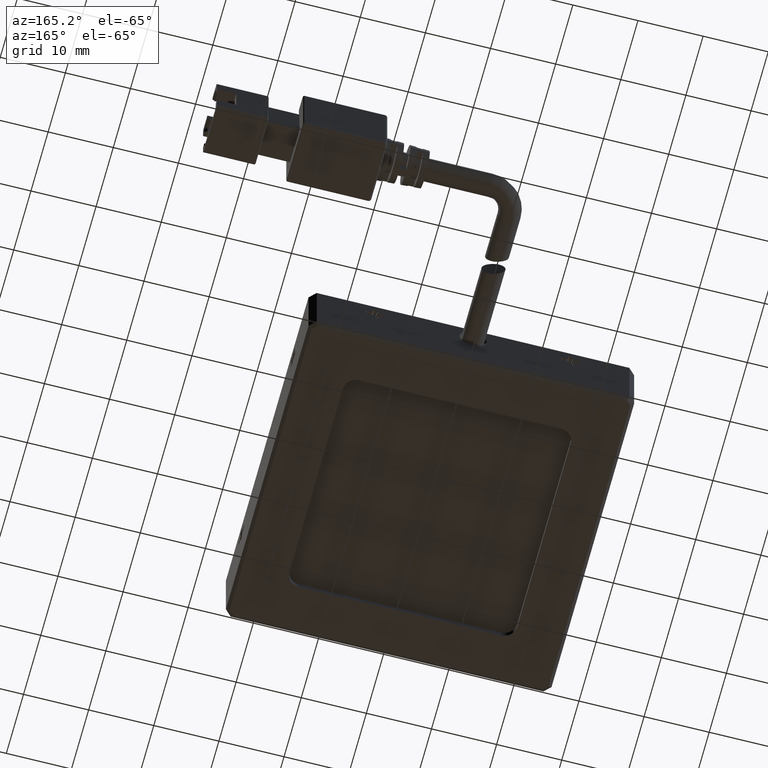
[diagram: clean part render]
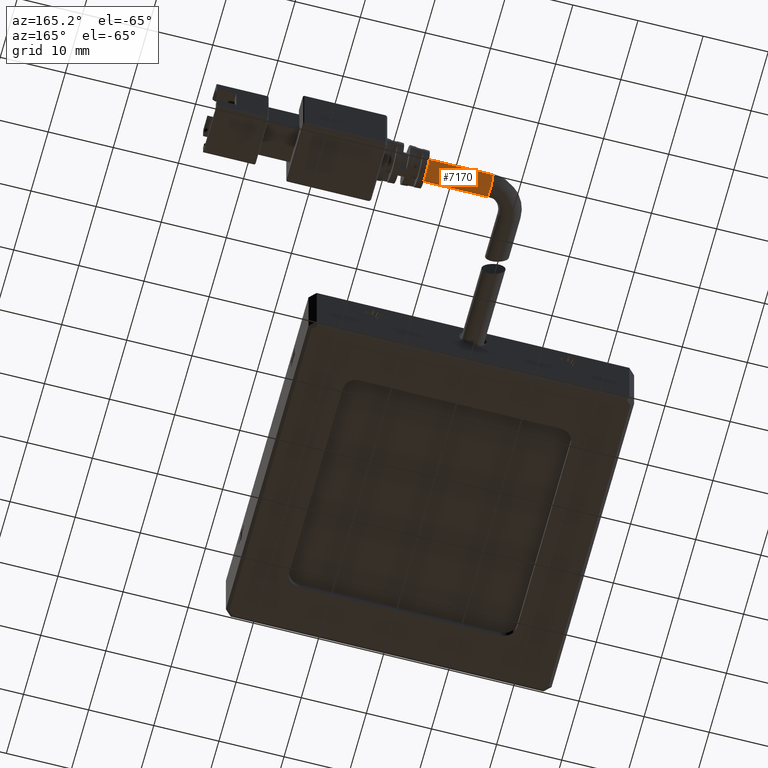
[diagram: same view with one face highlighted and labeled with its STEP entity id]
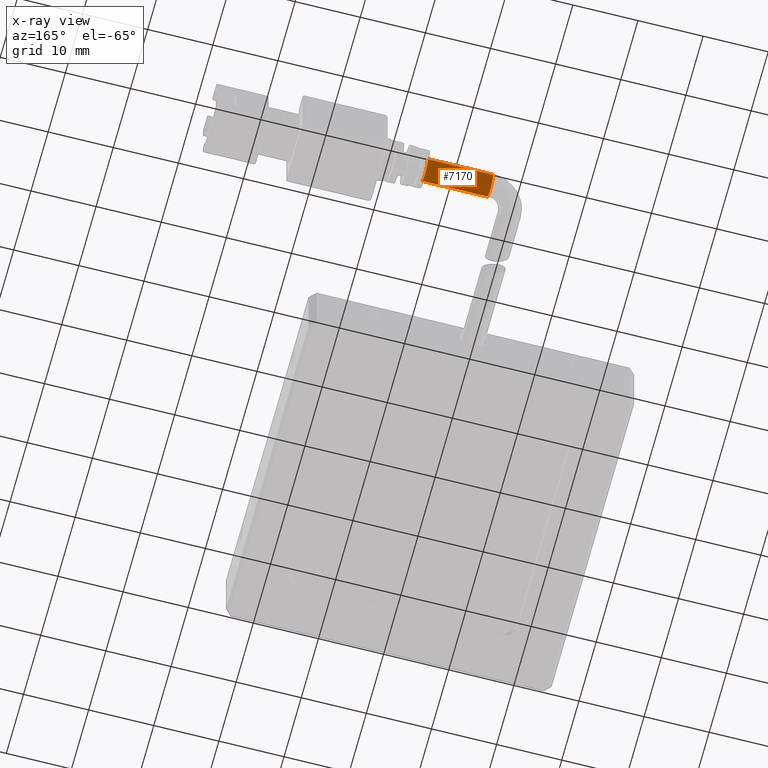
[diagram: x-ray of the same camera — body ghosted, the highlighted face saturated]
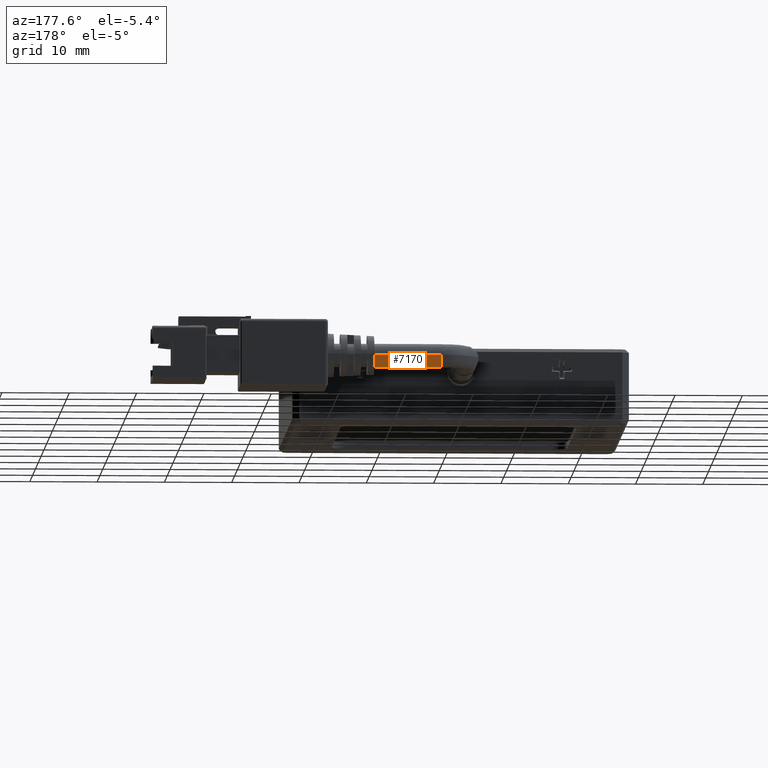
[diagram: same view with one face highlighted and labeled with its STEP entity id]
A machine part, auxiliary view. The second image highlights one B-rep face of the part: STEP entity #7170.
The next image is the same camera in x-ray: the body ghosted, the highlighted face saturated — about 0% of this face is hidden behind the body in this view.
A second angle (auxiliary view) of the same face is appended — the face is thin or edge-on in the first view.
In plain terms, the highlighted cylindrical surface (edge-blend (fillet) strip) has radius 1.75 mm, axis along (1, 0, 0).
Its self-contained STEP definition (entity closure, byte-faithful):
#453 = AXIS2_PLACEMENT_3D ( 'NONE', #41312, #21845, #2354 ) ;
#1130 = CARTESIAN_POINT ( 'NONE',  ( 23.26702531645571900, 62.46113924050633400, -1.250000000000000900 ) ) ;
#1854 = EDGE_CURVE ( 'NONE', #2783, #14086, #41158, .T. ) ;
#1957 = CARTESIAN_POINT ( 'NONE',  ( 23.26702531645571900, 65.96113924050634100, -1.250000000000000700 ) ) ;
#2354 = DIRECTION ( 'NONE',  ( 0.0000000000000000000, 1.000000000000000000, -1.239088197126289600E-016 ) ) ;
#2695 = EDGE_LOOP ( 'NONE', ( #35041, #12792, #5763, #24691 ) ) ;
#2783 = VERTEX_POINT ( 'NONE', #1957 ) ;
#2909 = DIRECTION ( 'NONE',  ( 1.000000000000000000, 0.0000000000000000000, 0.0000000000000000000 ) ) ;
#5199 = CARTESIAN_POINT ( 'NONE',  ( 33.26702531645572200, 65.96113924050634100, -1.250000000000000900 ) ) ;
#5756 = CARTESIAN_POINT ( 'NONE',  ( 26.26702531645571900, 65.96113924050634100, -1.250000000000000900 ) ) ;
#5763 = ORIENTED_EDGE ( 'NONE', *, *, #1854, .T. ) ;
#6143 = AXIS2_PLACEMENT_3D ( 'NONE', #22387, #2909, #25665 ) ;
#7170 = ADVANCED_FACE ( 'NONE', ( #20222 ), #17117, .T. ) ;
#8473 = CIRCLE ( 'NONE', #6143, 1.750000000000001600 ) ;
#12250 = EDGE_CURVE ( 'NONE', #21576, #14086, #27394, .T. ) ;
#12792 = ORIENTED_EDGE ( 'NONE', *, *, #14400, .T. ) ;
#12943 = AXIS2_PLACEMENT_3D ( 'NONE', #24257, #40587, #34220 ) ;
#14086 = VERTEX_POINT ( 'NONE', #5199 ) ;
#14400 = EDGE_CURVE ( 'NONE', #33490, #2783, #8473, .T. ) ;
#15041 = VECTOR ( 'NONE', #36590, 1000.000000000000000 ) ;
#17117 = CYLINDRICAL_SURFACE ( 'NONE', #12943, 1.750000000000001600 ) ;
#20222 = FACE_OUTER_BOUND ( 'NONE', #2695, .T. ) ;
#21576 = VERTEX_POINT ( 'NONE', #40219 ) ;
#21845 = DIRECTION ( 'NONE',  ( 1.000000000000000000, 0.0000000000000000000, 0.0000000000000000000 ) ) ;
#22387 = CARTESIAN_POINT ( 'NONE',  ( 23.26702531645571900, 64.21113924050634100, -1.250000000000000700 ) ) ;
#23732 = LINE ( 'NONE', #26732, #15041 ) ;
#23865 = VECTOR ( 'NONE', #28597, 1000.000000000000000 ) ;
#24257 = CARTESIAN_POINT ( 'NONE',  ( 26.26702531645571900, 64.21113924050634100, -1.250000000000000700 ) ) ;
#24691 = ORIENTED_EDGE ( 'NONE', *, *, #12250, .F. ) ;
#25665 = DIRECTION ( 'NONE',  ( 0.0000000000000000000, 1.000000000000000000, -1.239088197126289600E-016 ) ) ;
#26732 = CARTESIAN_POINT ( 'NONE',  ( 26.26702531645571900, 62.46113924050633400, -1.250000000000000200 ) ) ;
#27394 = CIRCLE ( 'NONE', #453, 1.750000000000001600 ) ;
#28597 = DIRECTION ( 'NONE',  ( 1.000000000000000000, 0.0000000000000000000, 0.0000000000000000000 ) ) ;
#33490 = VERTEX_POINT ( 'NONE', #1130 ) ;
#34220 = DIRECTION ( 'NONE',  ( 0.0000000000000000000, 1.000000000000000000, -1.239088197126289600E-016 ) ) ;
#35041 = ORIENTED_EDGE ( 'NONE', *, *, #38415, .F. ) ;
#36590 = DIRECTION ( 'NONE',  ( 1.000000000000000000, 0.0000000000000000000, 0.0000000000000000000 ) ) ;
#38415 = EDGE_CURVE ( 'NONE', #33490, #21576, #23732, .T. ) ;
#40219 = CARTESIAN_POINT ( 'NONE',  ( 33.26702531645572200, 62.46113924050633400, -1.250000000000000200 ) ) ;
#40587 = DIRECTION ( 'NONE',  ( 1.000000000000000000, 0.0000000000000000000, 0.0000000000000000000 ) ) ;
#41158 = LINE ( 'NONE', #5756, #23865 ) ;
#41312 = CARTESIAN_POINT ( 'NONE',  ( 33.26702531645572200, 64.21113924050634100, -1.250000000000000700 ) ) ;